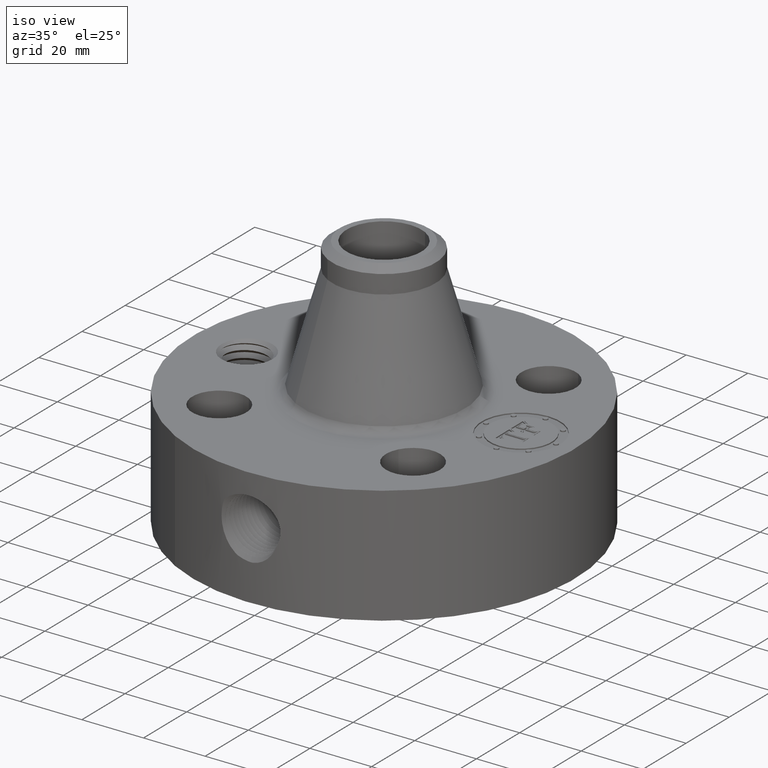
[diagram: clean part render]
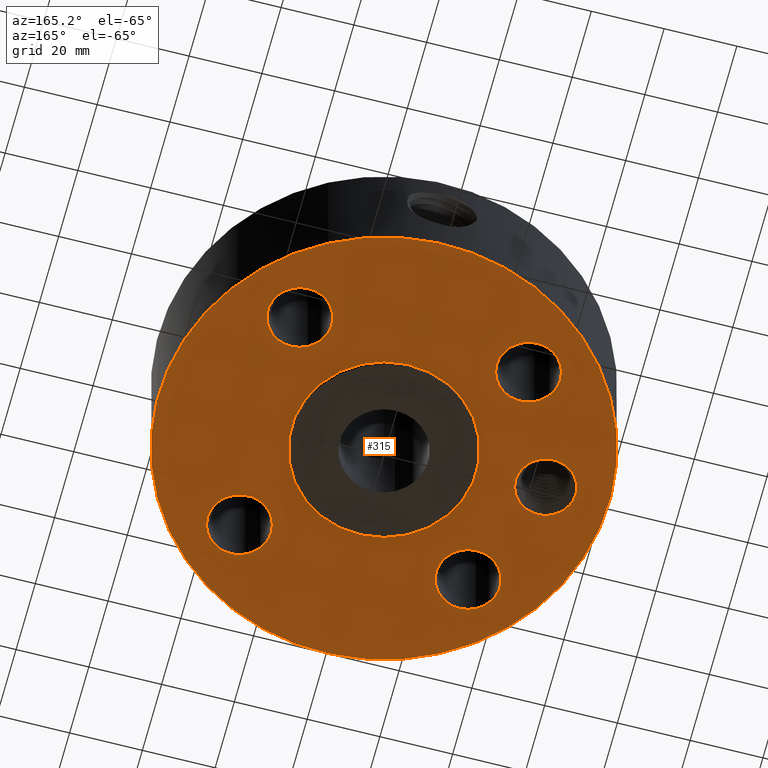
[diagram: tour spotlight — one face highlighted and labeled with its STEP entity id]
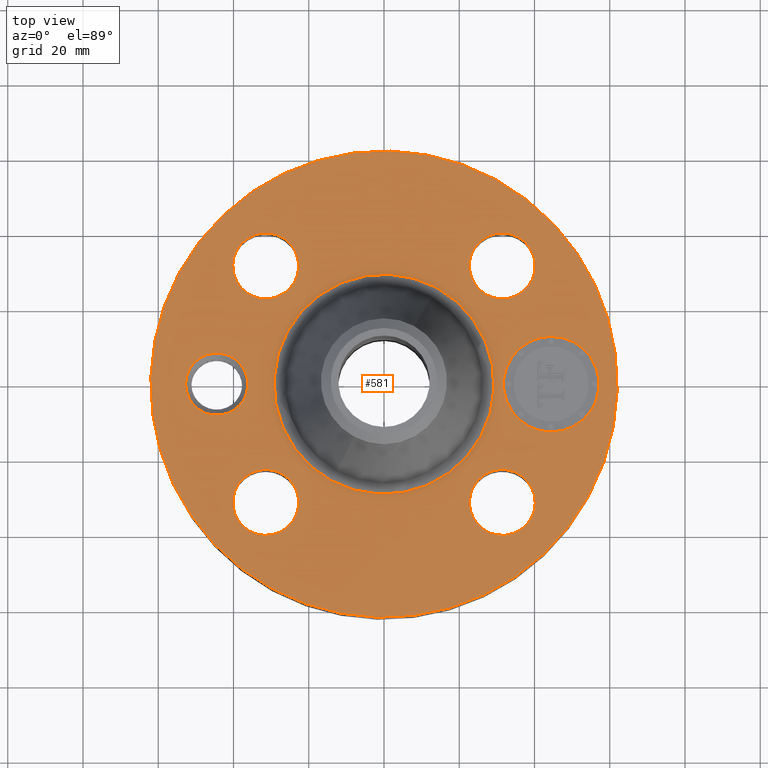
[diagram: tour spotlight — one face highlighted and labeled with its STEP entity id]
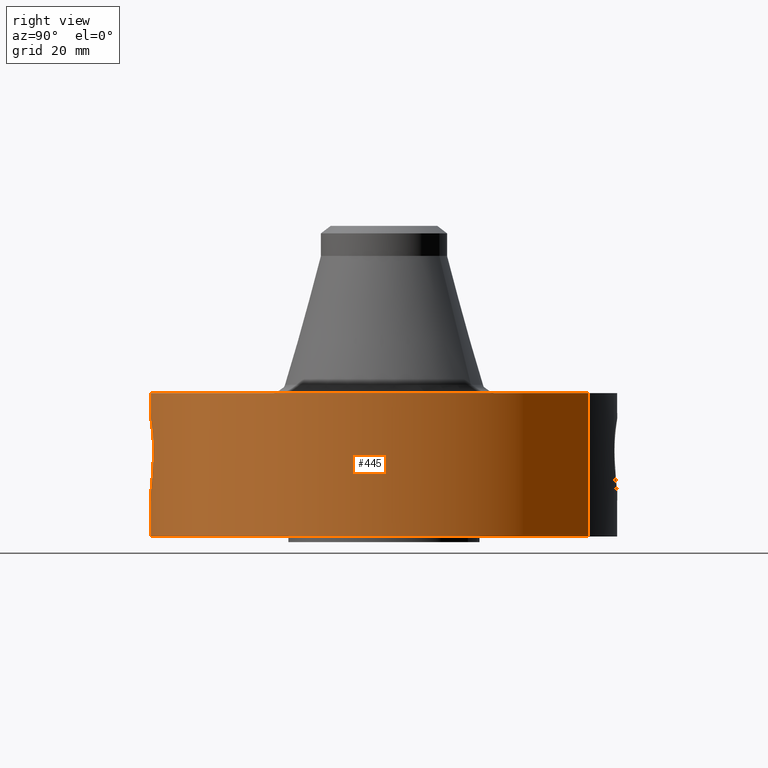
[diagram: tour spotlight — one face highlighted and labeled with its STEP entity id]
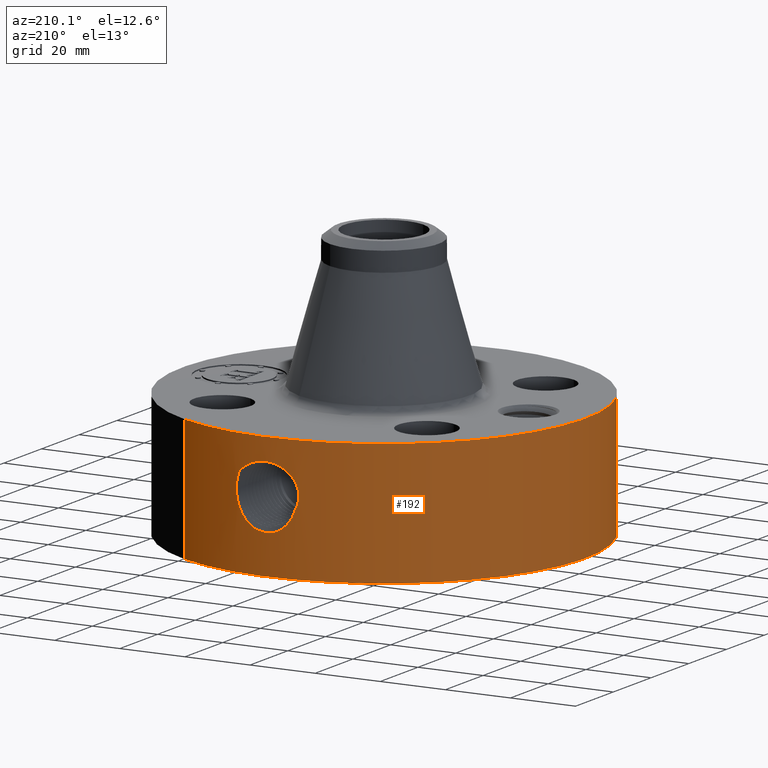
[diagram: tour spotlight — one face highlighted and labeled with its STEP entity id]
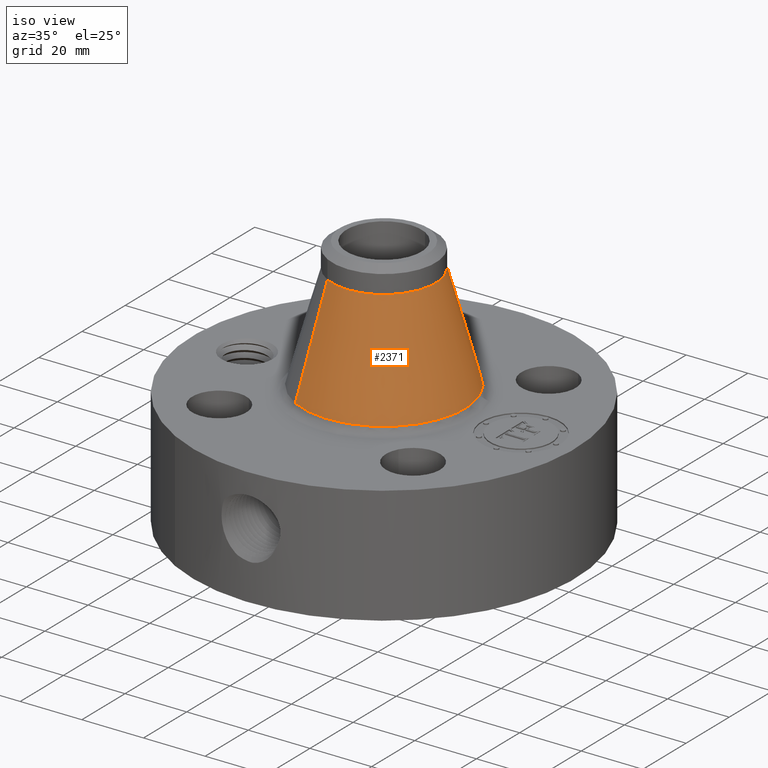
[diagram: tour spotlight — one face highlighted and labeled with its STEP entity id]
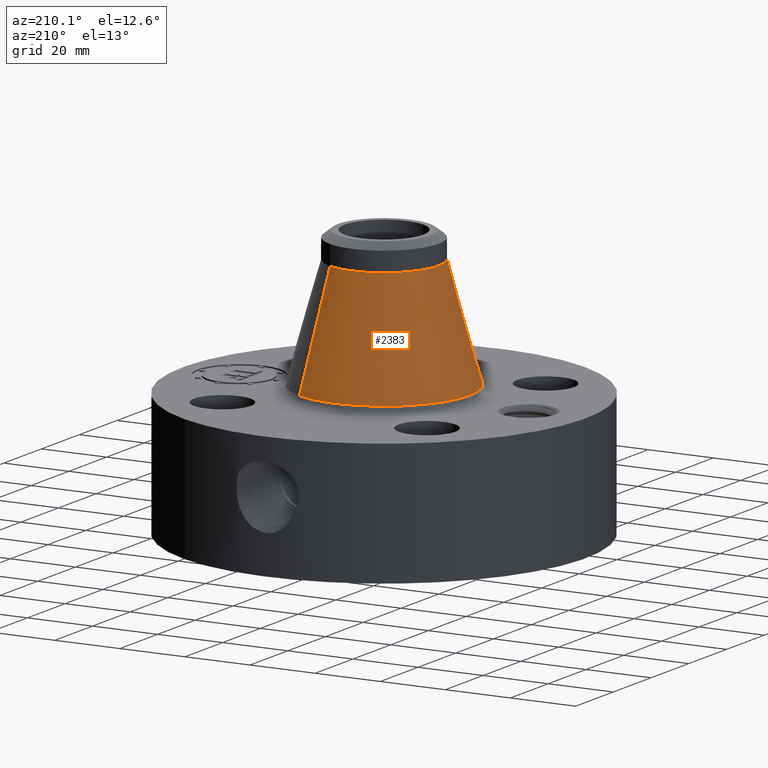
[diagram: tour spotlight — one face highlighted and labeled with its STEP entity id]
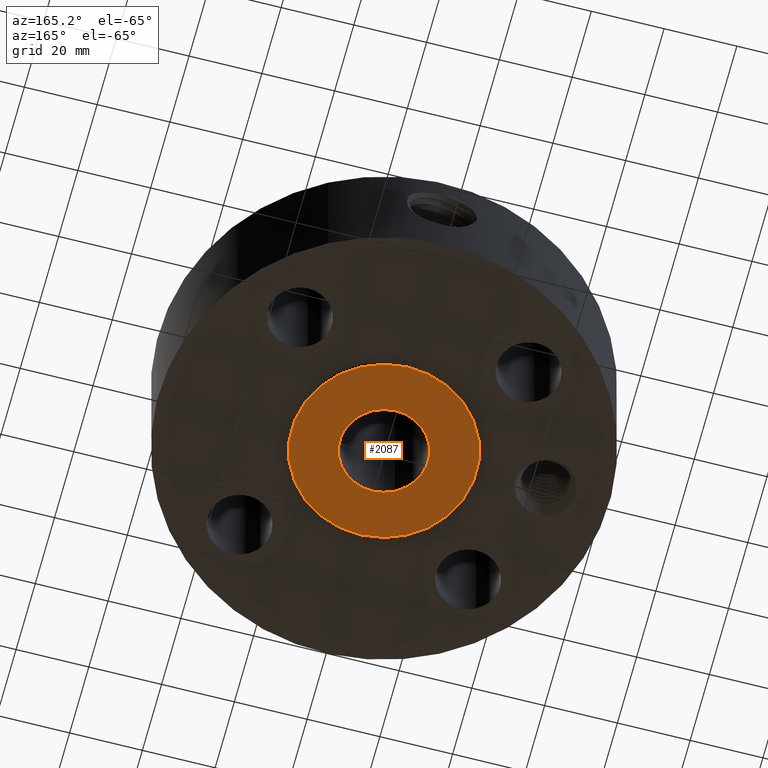
[diagram: tour spotlight — one face highlighted and labeled with its STEP entity id]
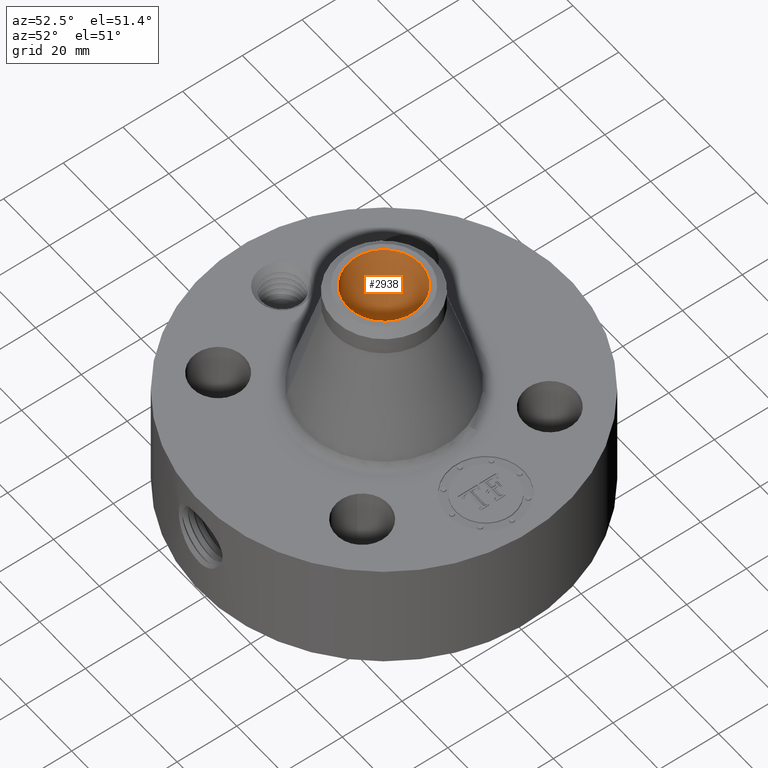
[diagram: tour spotlight — one face highlighted and labeled with its STEP entity id]
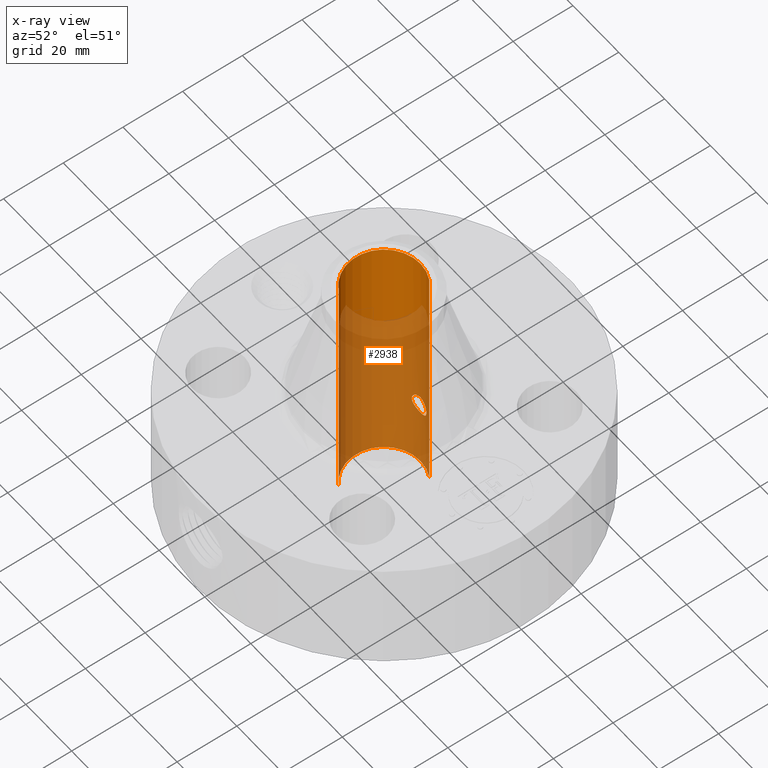
[diagram: x-ray of the same camera — body ghosted, this tour face saturated]
A machine part: a face-by-face anatomy tour. The part has 764 B-rep faces; the first image is the clean iso view, then the 8 largest visible faces are spotlighted one at a time (largest first), each with its STEP entity span.

Face 1 — auxiliary view, entity #315. In plain terms, the highlighted planar face has unit normal (0, 0, -1).
Definition (entity closure, byte-faithful):
#42=AXIS2_PLACEMENT_3D('Circle Axis2P3D',#40,#41,$) ;
#196=AXIS2_PLACEMENT_3D('Plane Axis2P3D',#193,#194,#195) ;
#200=AXIS2_PLACEMENT_3D('Circle Axis2P3D',#198,#199,$) ;
#209=AXIS2_PLACEMENT_3D('Circle Axis2P3D',#207,#208,$) ;
#218=AXIS2_PLACEMENT_3D('Circle Axis2P3D',#216,#217,$) ;
#227=AXIS2_PLACEMENT_3D('Circle Axis2P3D',#225,#226,$) ;
#236=AXIS2_PLACEMENT_3D('Circle Axis2P3D',#234,#235,$) ;
#245=AXIS2_PLACEMENT_3D('Circle Axis2P3D',#243,#244,$) ;
#254=AXIS2_PLACEMENT_3D('Circle Axis2P3D',#252,#253,$) ;
#263=AXIS2_PLACEMENT_3D('Circle Axis2P3D',#261,#262,$) ;
#272=AXIS2_PLACEMENT_3D('Circle Axis2P3D',#270,#271,$) ;
#281=AXIS2_PLACEMENT_3D('Circle Axis2P3D',#279,#280,$) ;
#290=AXIS2_PLACEMENT_3D('Circle Axis2P3D',#288,#289,$) ;
#299=AXIS2_PLACEMENT_3D('Circle Axis2P3D',#297,#298,$) ;
#308=AXIS2_PLACEMENT_3D('Circle Axis2P3D',#306,#307,$) ;
#40=CARTESIAN_POINT('Axis2P3D Location',(0.,0.,0.0600000000002)) ;
#44=CARTESIAN_POINT('Vertex',(-1.1697983142,-2.14130145102,0.0600000000002)) ;
#46=CARTESIAN_POINT('Vertex',(1.1697983142,2.14130145102,0.0600000000002)) ;
#193=CARTESIAN_POINT('Axis2P3D Location',(0.,1.,0.0600000000002)) ;
#198=CARTESIAN_POINT('Axis2P3D Location',(0.,0.,0.0600000000002)) ;
#207=CARTESIAN_POINT('Axis2P3D Location',(-1.75000000001,4.19611851827E-016,0.0600000000002)) ;
#211=CARTESIAN_POINT('Vertex',(-1.46423717829,-0.156112941009,0.0600000000002)) ;
#213=CARTESIAN_POINT('Vertex',(-2.03576282172,0.156112941009,0.0600000000002)) ;
#216=CARTESIAN_POINT('Axis2P3D Location',(-1.75000000001,4.19611851827E-016,0.0600000000002)) ;
#225=CARTESIAN_POINT('Axis2P3D Location',(1.23743686708,-1.23743686708,0.0600000000002)) ;
#229=CARTESIAN_POINT('Vertex',(1.54020285093,-1.4028386779,0.0600000000002)) ;
#231=CARTESIAN_POINT('Vertex',(0.934670883228,-1.07203505626,0.0600000000002)) ;
#234=CARTESIAN_POINT('Axis2P3D Location',(1.23743686708,-1.23743686708,0.0600000000002)) ;
#243=CARTESIAN_POINT('Axis2P3D Location',(0.,0.,0.0600000000002)) ;
#247=CARTESIAN_POINT('Vertex',(0.479425538606,0.877582561894,0.0600000000002)) ;
#249=CARTESIAN_POINT('Vertex',(-0.479425538606,-0.877582561894,0.0600000000002)) ;
#252=CARTESIAN_POINT('Axis2P3D Location',(0.,0.,0.0600000000002)) ;
#261=CARTESIAN_POINT('Axis2P3D Location',(-1.23743686708,-1.23743686708,0.0600000000002)) ;
#265=CARTESIAN_POINT('Vertex',(-1.07203505626,-0.934670883228,0.0600000000002)) ;
#267=CARTESIAN_POINT('Vertex',(-1.4028386779,-1.54020285093,0.0600000000002)) ;
#270=CARTESIAN_POINT('Axis2P3D Location',(-1.23743686708,-1.23743686708,0.0600000000002)) ;
#279=CARTESIAN_POINT('Axis2P3D Location',(-1.23743686708,1.23743686708,0.0600000000002)) ;
#283=CARTESIAN_POINT('Vertex',(-0.934670883228,1.07203505626,0.0600000000002)) ;
#285=CARTESIAN_POINT('Vertex',(-1.54020285093,1.4028386779,0.0600000000002)) ;
#288=CARTESIAN_POINT('Axis2P3D Location',(-1.23743686708,1.23743686708,0.0600000000002)) ;
#297=CARTESIAN_POINT('Axis2P3D Location',(1.23743686708,1.23743686708,0.0600000000002)) ;
#301=CARTESIAN_POINT('Vertex',(1.07203505626,0.934670883228,0.0600000000002)) ;
#303=CARTESIAN_POINT('Vertex',(1.4028386779,1.54020285093,0.0600000000002)) ;
#306=CARTESIAN_POINT('Axis2P3D Location',(1.23743686708,1.23743686708,0.0600000000002)) ;
#41=DIRECTION('Axis2P3D Direction',(0.,0.,-0.0393700787402)) ;
#194=DIRECTION('Axis2P3D Direction',(0.,0.,-0.0393700787402)) ;
#195=DIRECTION('Axis2P3D XDirection',(0.0393700787402,0.,0.)) ;
#199=DIRECTION('Axis2P3D Direction',(0.,0.,-0.0393700787402)) ;
#208=DIRECTION('Axis2P3D Direction',(0.,0.,-0.0393700787402)) ;
#217=DIRECTION('Axis2P3D Direction',(0.,0.,-0.0393700787402)) ;
#226=DIRECTION('Axis2P3D Direction',(0.,0.,-0.0393700787402)) ;
#235=DIRECTION('Axis2P3D Direction',(0.,0.,-0.0393700787402)) ;
#244=DIRECTION('Axis2P3D Direction',(0.,0.,-0.0393700787402)) ;
#253=DIRECTION('Axis2P3D Direction',(0.,0.,-0.0393700787402)) ;
#262=DIRECTION('Axis2P3D Direction',(0.,0.,-0.0393700787402)) ;
#271=DIRECTION('Axis2P3D Direction',(0.,0.,-0.0393700787402)) ;
#280=DIRECTION('Axis2P3D Direction',(0.,0.,-0.0393700787402)) ;
#289=DIRECTION('Axis2P3D Direction',(0.,0.,-0.0393700787402)) ;
#298=DIRECTION('Axis2P3D Direction',(0.,0.,-0.0393700787402)) ;
#307=DIRECTION('Axis2P3D Direction',(0.,0.,-0.0393700787402)) ;
#204=ORIENTED_EDGE('',*,*,#48,.T.) ;
#205=ORIENTED_EDGE('',*,*,#202,.T.) ;
#222=ORIENTED_EDGE('',*,*,#215,.F.) ;
#223=ORIENTED_EDGE('',*,*,#220,.F.) ;
#240=ORIENTED_EDGE('',*,*,#233,.F.) ;
#241=ORIENTED_EDGE('',*,*,#238,.F.) ;
#258=ORIENTED_EDGE('',*,*,#251,.F.) ;
#259=ORIENTED_EDGE('',*,*,#256,.F.) ;
#276=ORIENTED_EDGE('',*,*,#269,.F.) ;
#277=ORIENTED_EDGE('',*,*,#274,.F.) ;
#294=ORIENTED_EDGE('',*,*,#287,.F.) ;
#295=ORIENTED_EDGE('',*,*,#292,.F.) ;
#312=ORIENTED_EDGE('',*,*,#305,.F.) ;
#313=ORIENTED_EDGE('',*,*,#310,.F.) ;
#224=FACE_BOUND('',#221,.T.) ;
#242=FACE_BOUND('',#239,.T.) ;
#260=FACE_BOUND('',#257,.T.) ;
#278=FACE_BOUND('',#275,.T.) ;
#296=FACE_BOUND('',#293,.T.) ;
#314=FACE_BOUND('',#311,.T.) ;
#315=ADVANCED_FACE('PartBody',(#206,#224,#242,#260,#278,#296,#314),#197,.T.) ;
#43=CIRCLE('generated circle',#42,2.44000000001) ;
#201=CIRCLE('generated circle',#200,2.44000000001) ;
#210=CIRCLE('generated circle',#209,0.325625000001) ;
#219=CIRCLE('generated circle',#218,0.325625000001) ;
#228=CIRCLE('generated circle',#227,0.345000000001) ;
#237=CIRCLE('generated circle',#236,0.345000000001) ;
#246=CIRCLE('generated circle',#245,1.) ;
#255=CIRCLE('generated circle',#254,1.) ;
#264=CIRCLE('generated circle',#263,0.345000000001) ;
#273=CIRCLE('generated circle',#272,0.345000000001) ;
#282=CIRCLE('generated circle',#281,0.345000000001) ;
#291=CIRCLE('generated circle',#290,0.345000000001) ;
#300=CIRCLE('generated circle',#299,0.345000000001) ;
#309=CIRCLE('generated circle',#308,0.345000000001) ;
#48=EDGE_CURVE('',#45,#47,#43,.T.) ;
#202=EDGE_CURVE('',#47,#45,#201,.T.) ;
#215=EDGE_CURVE('',#212,#214,#210,.T.) ;
#220=EDGE_CURVE('',#214,#212,#219,.T.) ;
#233=EDGE_CURVE('',#230,#232,#228,.T.) ;
#238=EDGE_CURVE('',#232,#230,#237,.T.) ;
#251=EDGE_CURVE('',#248,#250,#246,.T.) ;
#256=EDGE_CURVE('',#250,#248,#255,.T.) ;
#269=EDGE_CURVE('',#266,#268,#264,.T.) ;
#274=EDGE_CURVE('',#268,#266,#273,.T.) ;
#287=EDGE_CURVE('',#284,#286,#282,.T.) ;
#292=EDGE_CURVE('',#286,#284,#291,.T.) ;
#305=EDGE_CURVE('',#302,#304,#300,.T.) ;
#310=EDGE_CURVE('',#304,#302,#309,.T.) ;
#203=EDGE_LOOP('',(#204,#205)) ;
#221=EDGE_LOOP('',(#222,#223)) ;
#239=EDGE_LOOP('',(#240,#241)) ;
#257=EDGE_LOOP('',(#258,#259)) ;
#275=EDGE_LOOP('',(#276,#277)) ;
#293=EDGE_LOOP('',(#294,#295)) ;
#311=EDGE_LOOP('',(#312,#313)) ;
#206=FACE_OUTER_BOUND('',#203,.T.) ;
#197=PLANE('',#196) ;
#45=VERTEX_POINT('',#44) ;
#47=VERTEX_POINT('',#46) ;
#212=VERTEX_POINT('',#211) ;
#214=VERTEX_POINT('',#213) ;
#230=VERTEX_POINT('',#229) ;
#232=VERTEX_POINT('',#231) ;
#248=VERTEX_POINT('',#247) ;
#250=VERTEX_POINT('',#249) ;
#266=VERTEX_POINT('',#265) ;
#268=VERTEX_POINT('',#267) ;
#284=VERTEX_POINT('',#283) ;
#286=VERTEX_POINT('',#285) ;
#302=VERTEX_POINT('',#301) ;
#304=VERTEX_POINT('',#303) ;

Face 2 — top view, entity #581. In plain terms, the highlighted planar face has unit normal (0, 0, -1).
Definition (entity closure, byte-faithful):
#58=AXIS2_PLACEMENT_3D('Circle Axis2P3D',#56,#57,$) ;
#318=AXIS2_PLACEMENT_3D('Circle Axis2P3D',#316,#317,$) ;
#449=AXIS2_PLACEMENT_3D('Plane Axis2P3D',#446,#447,#448) ;
#457=AXIS2_PLACEMENT_3D('Circle Axis2P3D',#455,#456,$) ;
#466=AXIS2_PLACEMENT_3D('Circle Axis2P3D',#464,#465,$) ;
#475=AXIS2_PLACEMENT_3D('Circle Axis2P3D',#473,#474,$) ;
#484=AXIS2_PLACEMENT_3D('Circle Axis2P3D',#482,#483,$) ;
#493=AXIS2_PLACEMENT_3D('Circle Axis2P3D',#491,#492,$) ;
#502=AXIS2_PLACEMENT_3D('Circle Axis2P3D',#500,#501,$) ;
#511=AXIS2_PLACEMENT_3D('Circle Axis2P3D',#509,#510,$) ;
#520=AXIS2_PLACEMENT_3D('Circle Axis2P3D',#518,#519,$) ;
#529=AXIS2_PLACEMENT_3D('Circle Axis2P3D',#527,#528,$) ;
#538=AXIS2_PLACEMENT_3D('Circle Axis2P3D',#536,#537,$) ;
#547=AXIS2_PLACEMENT_3D('Circle Axis2P3D',#545,#546,$) ;
#556=AXIS2_PLACEMENT_3D('Circle Axis2P3D',#554,#555,$) ;
#565=AXIS2_PLACEMENT_3D('Circle Axis2P3D',#563,#564,$) ;
#574=AXIS2_PLACEMENT_3D('Circle Axis2P3D',#572,#573,$) ;
#53=CARTESIAN_POINT('Vertex',(-1.1697983142,-2.14130145102,1.56000000001)) ;
#56=CARTESIAN_POINT('Axis2P3D Location',(0.,0.,1.56000000001)) ;
#60=CARTESIAN_POINT('Vertex',(1.1697983142,2.14130145102,1.56000000001)) ;
#316=CARTESIAN_POINT('Axis2P3D Location',(0.,0.,1.56000000001)) ;
#446=CARTESIAN_POINT('Axis2P3D Location',(0.,2.44000000001,1.56000000001)) ;
#455=CARTESIAN_POINT('Axis2P3D Location',(-1.75000000001,2.79741234551E-016,1.56000000001)) ;
#459=CARTESIAN_POINT('Vertex',(-2.03576282172,0.156112941009,1.56000000001)) ;
#461=CARTESIAN_POINT('Vertex',(-1.46423717829,-0.156112941009,1.56000000001)) ;
#464=CARTESIAN_POINT('Axis2P3D Location',(-1.75000000001,2.79741234551E-016,1.56000000001)) ;
#473=CARTESIAN_POINT('Axis2P3D Location',(1.23743686708,-1.23743686708,1.56000000001)) ;
#477=CARTESIAN_POINT('Vertex',(0.934670883228,-1.07203505626,1.56000000001)) ;
#479=CARTESIAN_POINT('Vertex',(1.54020285093,-1.4028386779,1.56000000001)) ;
#482=CARTESIAN_POINT('Axis2P3D Location',(1.23743686708,-1.23743686708,1.56000000001)) ;
#491=CARTESIAN_POINT('Axis2P3D Location',(0.,0.,1.56000000001)) ;
#495=CARTESIAN_POINT('Vertex',(-0.551878272916,-1.01020640245,1.56000000001)) ;
#497=CARTESIAN_POINT('Vertex',(0.551878272916,1.01020640245,1.56000000001)) ;
#500=CARTESIAN_POINT('Axis2P3D Location',(0.,0.,1.56000000001)) ;
#509=CARTESIAN_POINT('Axis2P3D Location',(-1.23743686708,-1.23743686708,1.56000000001)) ;
#513=CARTESIAN_POINT('Vertex',(-1.4028386779,-1.54020285093,1.56000000001)) ;
#515=CARTESIAN_POINT('Vertex',(-1.07203505626,-0.934670883228,1.56000000001)) ;
#518=CARTESIAN_POINT('Axis2P3D Location',(-1.23743686708,-1.23743686708,1.56000000001)) ;
#527=CARTESIAN_POINT('Axis2P3D Location',(-1.23743686708,1.23743686708,1.56000000001)) ;
#531=CARTESIAN_POINT('Vertex',(-1.54020285093,1.4028386779,1.56000000001)) ;
#533=CARTESIAN_POINT('Vertex',(-0.934670883228,1.07203505626,1.56000000001)) ;
#536=CARTESIAN_POINT('Axis2P3D Location',(-1.23743686708,1.23743686708,1.56000000001)) ;
#545=CARTESIAN_POINT('Axis2P3D Location',(1.23743686708,1.23743686708,1.56000000001)) ;
#549=CARTESIAN_POINT('Vertex',(1.4028386779,1.54020285093,1.56000000001)) ;
#551=CARTESIAN_POINT('Vertex',(1.07203505626,0.934670883228,1.56000000001)) ;
#554=CARTESIAN_POINT('Axis2P3D Location',(1.23743686708,1.23743686708,1.56000000001)) ;
#563=CARTESIAN_POINT('Axis2P3D Location',(1.75000000001,-4.75560098737E-015,1.56000000001)) ;
#567=CARTESIAN_POINT('Vertex',(1.75000000001,0.499999995002,1.56000000001)) ;
#569=CARTESIAN_POINT('Vertex',(1.75000000001,-0.499999995002,1.56000000001)) ;
#572=CARTESIAN_POINT('Axis2P3D Location',(1.75000000001,-4.19611851827E-015,1.56000000001)) ;
#57=DIRECTION('Axis2P3D Direction',(0.,0.,-0.0393700787402)) ;
#317=DIRECTION('Axis2P3D Direction',(0.,0.,-0.0393700787402)) ;
#447=DIRECTION('Axis2P3D Direction',(0.,0.,-0.0393700787402)) ;
#448=DIRECTION('Axis2P3D XDirection',(0.0393700787402,0.,0.)) ;
#456=DIRECTION('Axis2P3D Direction',(0.,0.,-0.0393700787402)) ;
#465=DIRECTION('Axis2P3D Direction',(0.,0.,-0.0393700787402)) ;
#474=DIRECTION('Axis2P3D Direction',(0.,0.,-0.0393700787402)) ;
#483=DIRECTION('Axis2P3D Direction',(0.,0.,-0.0393700787402)) ;
#492=DIRECTION('Axis2P3D Direction',(0.,0.,-0.0393700787402)) ;
#501=DIRECTION('Axis2P3D Direction',(0.,0.,-0.0393700787402)) ;
#510=DIRECTION('Axis2P3D Direction',(0.,0.,-0.0393700787402)) ;
#519=DIRECTION('Axis2P3D Direction',(0.,0.,-0.0393700787402)) ;
#528=DIRECTION('Axis2P3D Direction',(0.,0.,-0.0393700787402)) ;
#537=DIRECTION('Axis2P3D Direction',(0.,0.,-0.0393700787402)) ;
#546=DIRECTION('Axis2P3D Direction',(0.,0.,-0.0393700787402)) ;
#555=DIRECTION('Axis2P3D Direction',(0.,0.,-0.0393700787402)) ;
#564=DIRECTION('Axis2P3D Direction',(0.,0.,-0.0393700787402)) ;
#573=DIRECTION('Axis2P3D Direction',(0.,0.,-0.0393700787402)) ;
#452=ORIENTED_EDGE('',*,*,#320,.F.) ;
#453=ORIENTED_EDGE('',*,*,#62,.F.) ;
#470=ORIENTED_EDGE('',*,*,#463,.T.) ;
#471=ORIENTED_EDGE('',*,*,#468,.T.) ;
#488=ORIENTED_EDGE('',*,*,#481,.T.) ;
#489=ORIENTED_EDGE('',*,*,#486,.T.) ;
#506=ORIENTED_EDGE('',*,*,#499,.T.) ;
#507=ORIENTED_EDGE('',*,*,#504,.T.) ;
#524=ORIENTED_EDGE('',*,*,#517,.T.) ;
#525=ORIENTED_EDGE('',*,*,#522,.T.) ;
#542=ORIENTED_EDGE('',*,*,#535,.T.) ;
#543=ORIENTED_EDGE('',*,*,#540,.T.) ;
#560=ORIENTED_EDGE('',*,*,#553,.T.) ;
#561=ORIENTED_EDGE('',*,*,#558,.T.) ;
#578=ORIENTED_EDGE('',*,*,#571,.T.) ;
#579=ORIENTED_EDGE('',*,*,#576,.T.) ;
#472=FACE_BOUND('',#469,.T.) ;
#490=FACE_BOUND('',#487,.T.) ;
#508=FACE_BOUND('',#505,.T.) ;
#526=FACE_BOUND('',#523,.T.) ;
#544=FACE_BOUND('',#541,.T.) ;
#562=FACE_BOUND('',#559,.T.) ;
#580=FACE_BOUND('',#577,.T.) ;
#581=ADVANCED_FACE('PartBody',(#454,#472,#490,#508,#526,#544,#562,#580),#450,.F.) ;
#59=CIRCLE('generated circle',#58,2.44000000001) ;
#319=CIRCLE('generated circle',#318,2.44000000001) ;
#458=CIRCLE('generated circle',#457,0.325625000001) ;
#467=CIRCLE('generated circle',#466,0.325625000001) ;
#476=CIRCLE('generated circle',#475,0.345000000001) ;
#485=CIRCLE('generated circle',#484,0.345000000001) ;
#494=CIRCLE('generated circle',#493,1.15112406094) ;
#503=CIRCLE('generated circle',#502,1.15112406094) ;
#512=CIRCLE('generated circle',#511,0.345000000001) ;
#521=CIRCLE('generated circle',#520,0.345000000001) ;
#530=CIRCLE('generated circle',#529,0.345000000001) ;
#539=CIRCLE('generated circle',#538,0.345000000001) ;
#548=CIRCLE('generated circle',#547,0.345000000001) ;
#557=CIRCLE('generated circle',#556,0.345000000001) ;
#566=CIRCLE('generated circle',#565,0.499999995002) ;
#575=CIRCLE('generated circle',#574,0.499999995002) ;
#62=EDGE_CURVE('',#54,#61,#59,.T.) ;
#320=EDGE_CURVE('',#61,#54,#319,.T.) ;
#463=EDGE_CURVE('',#460,#462,#458,.T.) ;
#468=EDGE_CURVE('',#462,#460,#467,.T.) ;
#481=EDGE_CURVE('',#478,#480,#476,.T.) ;
#486=EDGE_CURVE('',#480,#478,#485,.T.) ;
#499=EDGE_CURVE('',#496,#498,#494,.T.) ;
#504=EDGE_CURVE('',#498,#496,#503,.T.) ;
#517=EDGE_CURVE('',#514,#516,#512,.T.) ;
#522=EDGE_CURVE('',#516,#514,#521,.T.) ;
#535=EDGE_CURVE('',#532,#534,#530,.T.) ;
#540=EDGE_CURVE('',#534,#532,#539,.T.) ;
#553=EDGE_CURVE('',#550,#552,#548,.T.) ;
#558=EDGE_CURVE('',#552,#550,#557,.T.) ;
#571=EDGE_CURVE('',#568,#570,#566,.T.) ;
#576=EDGE_CURVE('',#570,#568,#575,.T.) ;
#451=EDGE_LOOP('',(#452,#453)) ;
#469=EDGE_LOOP('',(#470,#471)) ;
#487=EDGE_LOOP('',(#488,#489)) ;
#505=EDGE_LOOP('',(#506,#507)) ;
#523=EDGE_LOOP('',(#524,#525)) ;
#541=EDGE_LOOP('',(#542,#543)) ;
#559=EDGE_LOOP('',(#560,#561)) ;
#577=EDGE_LOOP('',(#578,#579)) ;
#454=FACE_OUTER_BOUND('',#451,.T.) ;
#450=PLANE('',#449) ;
#54=VERTEX_POINT('',#53) ;
#61=VERTEX_POINT('',#60) ;
#460=VERTEX_POINT('',#459) ;
#462=VERTEX_POINT('',#461) ;
#478=VERTEX_POINT('',#477) ;
#480=VERTEX_POINT('',#479) ;
#496=VERTEX_POINT('',#495) ;
#498=VERTEX_POINT('',#497) ;
#514=VERTEX_POINT('',#513) ;
#516=VERTEX_POINT('',#515) ;
#532=VERTEX_POINT('',#531) ;
#534=VERTEX_POINT('',#533) ;
#550=VERTEX_POINT('',#549) ;
#552=VERTEX_POINT('',#551) ;
#568=VERTEX_POINT('',#567) ;
#570=VERTEX_POINT('',#569) ;

Face 3 — right view, entity #445. In plain terms, the highlighted cylindrical surface (partial cylindrical patch) has radius 61.976 mm, axis along (0, 0, -1).
Definition (entity closure, byte-faithful):
#38=AXIS2_PLACEMENT_3D('Cylinder Axis2P3D',#35,#36,#37) ;
#200=AXIS2_PLACEMENT_3D('Circle Axis2P3D',#198,#199,$) ;
#318=AXIS2_PLACEMENT_3D('Circle Axis2P3D',#316,#317,$) ;
#35=CARTESIAN_POINT('Axis2P3D Location',(0.,0.,1.65500000001)) ;
#44=CARTESIAN_POINT('Vertex',(-1.1697983142,-2.14130145102,0.0600000000002)) ;
#46=CARTESIAN_POINT('Vertex',(1.1697983142,2.14130145102,0.0600000000002)) ;
#49=CARTESIAN_POINT('Line Origine',(-1.1697983142,-2.14130145102,0.810000000003)) ;
#53=CARTESIAN_POINT('Vertex',(-1.1697983142,-2.14130145102,1.56000000001)) ;
#60=CARTESIAN_POINT('Vertex',(1.1697983142,2.14130145102,1.56000000001)) ;
#63=CARTESIAN_POINT('Line Origine',(1.1697983142,2.14130145102,0.810000000003)) ;
#198=CARTESIAN_POINT('Axis2P3D Location',(0.,0.,0.0600000000002)) ;
#316=CARTESIAN_POINT('Axis2P3D Location',(0.,0.,1.56000000001)) ;
#328=CARTESIAN_POINT('Control Point',(0.16192159428,-2.4346214074,1.25474246112)) ;
#329=CARTESIAN_POINT('Control Point',(0.12476167853,-2.43709283592,1.27394650423)) ;
#330=CARTESIAN_POINT('Control Point',(0.0845285010645,-2.43901250296,1.28730102498)) ;
#331=CARTESIAN_POINT('Control Point',(0.042626626407,-2.43998754964,1.2940330846)) ;
#332=CARTESIAN_POINT('Control Point',(0.000718733829063,-2.43999989415,1.29411849633)) ;
#333=CARTESIAN_POINT('Vertex',(0.161921600554,-2.43462140699,1.25474245804)) ;
#335=CARTESIAN_POINT('Vertex',(0.000718469330927,-2.43999989423,1.29411850216)) ;
#339=CARTESIAN_POINT('Control Point',(0.16989837306,-2.43407776024,1.25094225976)) ;
#340=CARTESIAN_POINT('Control Point',(0.167252431002,-2.43426244672,1.25223769882)) ;
#341=CARTESIAN_POINT('Control Point',(0.164593290178,-2.43444371847,1.25350443879)) ;
#342=CARTESIAN_POINT('Control Point',(0.161921599901,-2.43462140702,1.25474245516)) ;
#343=CARTESIAN_POINT('Vertex',(0.16989837306,-2.43407776024,1.25094225976)) ;
#347=CARTESIAN_POINT('Control Point',(0.328116375832,-2.41783780348,0.808661705007)) ;
#348=CARTESIAN_POINT('Control Point',(0.351266820572,-2.41469613699,0.847920653397)) ;
#349=CARTESIAN_POINT('Control Point',(0.367537068289,-2.41220597774,0.891967145638)) ;
#350=CARTESIAN_POINT('Control Point',(0.374754426076,-2.41102143693,0.939647099964)) ;
#351=CARTESIAN_POINT('Control Point',(0.370017243737,-2.41184047452,1.00871566147)) ;
#352=CARTESIAN_POINT('Control Point',(0.346589033702,-2.41527741307,1.0725719509)) ;
#353=CARTESIAN_POINT('Control Point',(0.337668385423,-2.41655315054,1.09162203602)) ;
#354=CARTESIAN_POINT('Control Point',(0.30776430118,-2.42066054004,1.1438749814)) ;
#355=CARTESIAN_POINT('Control Point',(0.266998882778,-2.42558826776,1.18820864016)) ;
#356=CARTESIAN_POINT('Control Point',(0.236947873255,-2.428785004,1.21314596385)) ;
#357=CARTESIAN_POINT('Control Point',(0.204355865072,-2.4316726309,1.23407205562)) ;
#358=CARTESIAN_POINT('Control Point',(0.16989837306,-2.43407776024,1.25094225976)) ;
#359=CARTESIAN_POINT('Vertex',(0.328116855676,-2.4178375316,0.808661757571)) ;
#363=CARTESIAN_POINT('Control Point',(0.320424227438,-2.41886922229,0.790797428481)) ;
#364=CARTESIAN_POINT('Control Point',(0.323151379818,-2.41850796022,0.796680963761)) ;
#365=CARTESIAN_POINT('Control Point',(0.325717354747,-2.41816336819,0.802639990312)) ;
#366=CARTESIAN_POINT('Control Point',(0.328118233165,-2.41783755143,0.808665582027)) ;
#367=CARTESIAN_POINT('Vertex',(0.320424889206,-2.41886937017,0.790798496527)) ;
#371=CARTESIAN_POINT('Control Point',(0.0268393869742,-2.43985238229,0.530897557486)) ;
#372=CARTESIAN_POINT('Control Point',(0.111814828556,-2.43891761723,0.542087008344)) ;
#373=CARTESIAN_POINT('Control Point',(0.192381472741,-2.43423204041,0.582047115166)) ;
#374=CARTESIAN_POINT('Control Point',(0.253315115574,-2.42735806073,0.644291367866)) ;
#375=CARTESIAN_POINT('Control Point',(0.296042119696,-2.42209908944,0.715167636122)) ;
#376=CARTESIAN_POINT('Control Point',(0.320424558949,-2.41886917837,0.790798572524)) ;
#377=CARTESIAN_POINT('Vertex',(0.0268393869742,-2.43985238229,0.530897557486)) ;
#381=CARTESIAN_POINT('Control Point',(0.0268393869742,-2.43985238229,0.530897557486)) ;
#382=CARTESIAN_POINT('Control Point',(0.0178847963814,-2.43995088649,0.530836461707)) ;
#383=CARTESIAN_POINT('Control Point',(0.00893312393866,-2.44000001,0.530995456445)) ;
#384=CARTESIAN_POINT('Control Point',(-2.72878353948E-006,-2.44000000001,0.531374667804)) ;
#385=CARTESIAN_POINT('Vertex',(-2.72878353754E-006,-2.44000000001,0.531374667804)) ;
#389=CARTESIAN_POINT('Control Point',(-0.165476014271,-2.43438240397,0.565083204059)) ;
#390=CARTESIAN_POINT('Control Point',(-0.112562343707,-2.43797918617,0.544988923625)) ;
#391=CARTESIAN_POINT('Control Point',(-0.0565393148661,-2.43999993678,0.533773914324)) ;
#392=CARTESIAN_POINT('Control Point',(-2.72878353731E-006,-2.44000000001,0.531374667804)) ;
#393=CARTESIAN_POINT('Vertex',(-0.165476014271,-2.43438240397,0.565083204059)) ;
#397=CARTESIAN_POINT('Control Point',(-0.165476014271,-2.43438240397,0.565083204059)) ;
#398=CARTESIAN_POINT('Control Point',(-0.175740725453,-2.43368466499,0.570334729546)) ;
#399=CARTESIAN_POINT('Control Point',(-0.185738859904,-2.43293967132,0.576087631637)) ;
#400=CARTESIAN_POINT('Control Point',(-0.195421989316,-2.43216164063,0.582285375744)) ;
#401=CARTESIAN_POINT('Vertex',(-0.195421989316,-2.43216164063,0.582285375744)) ;
#405=CARTESIAN_POINT('Control Point',(-0.195421989316,-2.43216164063,0.582285375744)) ;
#406=CARTESIAN_POINT('Control Point',(-0.247998255526,-2.42793718516,0.61593712418)) ;
#407=CARTESIAN_POINT('Control Point',(-0.293011536391,-2.42289055424,0.660601235601)) ;
#408=CARTESIAN_POINT('Control Point',(-0.328229760174,-2.41805808128,0.712425717438)) ;
#409=CARTESIAN_POINT('Control Point',(-0.382261864301,-2.41005605017,0.829676974245)) ;
#410=CARTESIAN_POINT('Control Point',(-0.395270513625,-2.40773032595,0.958065769538)) ;
#411=CARTESIAN_POINT('Control Point',(-0.390965855309,-2.40847371399,1.0256177461)) ;
#412=CARTESIAN_POINT('Control Point',(-0.375402852348,-2.41110143503,1.09202151237)) ;
#413=CARTESIAN_POINT('Control Point',(-0.348525615673,-2.4149803095,1.15442637902)) ;
#414=CARTESIAN_POINT('Vertex',(-0.348525615673,-2.4149803095,1.15442637902)) ;
#418=CARTESIAN_POINT('Control Point',(-0.348525615673,-2.4149803095,1.15442637902)) ;
#419=CARTESIAN_POINT('Control Point',(-0.294301956472,-2.42280577049,1.21385963823)) ;
#420=CARTESIAN_POINT('Control Point',(-0.226049836573,-2.43110253319,1.25810660709)) ;
#421=CARTESIAN_POINT('Control Point',(-0.151999424149,-2.43708486052,1.28575229226)) ;
#422=CARTESIAN_POINT('Control Point',(-0.0753413751147,-2.44000079858,1.29784713552)) ;
#423=CARTESIAN_POINT('Control Point',(2.58579354729E-005,-2.43999999987,1.29415298447)) ;
#424=CARTESIAN_POINT('Vertex',(2.58579354723E-005,-2.43999999987,1.29415298447)) ;
#428=CARTESIAN_POINT('Control Point',(0.000718469314804,-2.43999989423,1.29411850215)) ;
#429=CARTESIAN_POINT('Control Point',(0.000372184904074,-2.4399999962,1.29413600915)) ;
#430=CARTESIAN_POINT('Control Point',(2.58579482142E-005,-2.43999999987,1.29415298447)) ;
#36=DIRECTION('Axis2P3D Direction',(0.,0.,-0.0393700787402)) ;
#37=DIRECTION('Axis2P3D XDirection',(0.0188750212049,0.0345504945626,0.)) ;
#50=DIRECTION('Vector Direction',(0.,0.,-0.0393700787402)) ;
#64=DIRECTION('Vector Direction',(0.,0.,-0.0393700787402)) ;
#199=DIRECTION('Axis2P3D Direction',(0.,0.,-0.0393700787402)) ;
#317=DIRECTION('Axis2P3D Direction',(0.,0.,-0.0393700787402)) ;
#51=VECTOR('Line Direction',#50,0.0393700787402) ;
#65=VECTOR('Line Direction',#64,0.0393700787402) ;
#322=ORIENTED_EDGE('',*,*,#202,.F.) ;
#323=ORIENTED_EDGE('',*,*,#67,.T.) ;
#324=ORIENTED_EDGE('',*,*,#320,.T.) ;
#325=ORIENTED_EDGE('',*,*,#55,.F.) ;
#433=ORIENTED_EDGE('',*,*,#337,.F.) ;
#434=ORIENTED_EDGE('',*,*,#345,.F.) ;
#435=ORIENTED_EDGE('',*,*,#361,.F.) ;
#436=ORIENTED_EDGE('',*,*,#369,.F.) ;
#437=ORIENTED_EDGE('',*,*,#379,.F.) ;
#438=ORIENTED_EDGE('',*,*,#387,.T.) ;
#439=ORIENTED_EDGE('',*,*,#395,.F.) ;
#440=ORIENTED_EDGE('',*,*,#403,.T.) ;
#441=ORIENTED_EDGE('',*,*,#416,.T.) ;
#442=ORIENTED_EDGE('',*,*,#426,.T.) ;
#443=ORIENTED_EDGE('',*,*,#431,.F.) ;
#444=FACE_BOUND('',#432,.T.) ;
#445=ADVANCED_FACE('PartBody',(#326,#444),#39,.T.) ;
#327=B_SPLINE_CURVE_WITH_KNOTS('',4,(#328,#329,#330,#331,#332),.UNSPECIFIED.,.F.,.U.,(5,5),(0.175518252428,6.37462366398),.UNSPECIFIED.) ;
#338=B_SPLINE_CURVE_WITH_KNOTS('',3,(#339,#340,#341,#342),.UNSPECIFIED.,.F.,.U.,(4,4),(0.,0.330159466825),.UNSPECIFIED.) ;
#346=B_SPLINE_CURVE_WITH_KNOTS('',5,(#347,#348,#349,#350,#351,#352,#353,#354,#355,#356,#357,#358),.UNSPECIFIED.,.F.,.U.,(6,3,3,6),(0.,8.53095212055,12.3556762986,19.5216604215),.UNSPECIFIED.) ;
#362=B_SPLINE_CURVE_WITH_KNOTS('',3,(#363,#364,#365,#366),.UNSPECIFIED.,.F.,.U.,(4,4),(9.56540750371,10.2865901374),.UNSPECIFIED.) ;
#370=B_SPLINE_CURVE_WITH_KNOTS('',5,(#371,#372,#373,#374,#375,#376),.UNSPECIFIED.,.F.,.U.,(6,6),(0.,14.898955716),.UNSPECIFIED.) ;
#380=B_SPLINE_CURVE_WITH_KNOTS('',3,(#381,#382,#383,#384),.UNSPECIFIED.,.F.,.U.,(4,4),(0.,0.933901051561),.UNSPECIFIED.) ;
#388=B_SPLINE_CURVE_WITH_KNOTS('',3,(#389,#390,#391,#392),.UNSPECIFIED.,.F.,.U.,(4,4),(0.,5.90873404335),.UNSPECIFIED.) ;
#396=B_SPLINE_CURVE_WITH_KNOTS('',3,(#397,#398,#399,#400),.UNSPECIFIED.,.F.,.U.,(4,4),(0.,1.203436921),.UNSPECIFIED.) ;
#404=B_SPLINE_CURVE_WITH_KNOTS('',5,(#405,#406,#407,#408,#409,#410,#411,#412,#413),.UNSPECIFIED.,.F.,.U.,(6,3,6),(0.,10.8904564295,22.7389374481),.UNSPECIFIED.) ;
#417=B_SPLINE_CURVE_WITH_KNOTS('',5,(#418,#419,#420,#421,#422,#423),.UNSPECIFIED.,.F.,.U.,(6,6),(0.,14.0876899546),.UNSPECIFIED.) ;
#427=B_SPLINE_CURVE_WITH_KNOTS('',2,(#428,#429,#430),.UNSPECIFIED.,.F.,.U.,(3,3),(1.28066519652,1.30655945912),.UNSPECIFIED.) ;
#201=CIRCLE('generated circle',#200,2.44000000001) ;
#319=CIRCLE('generated circle',#318,2.44000000001) ;
#39=CYLINDRICAL_SURFACE('generated cylinder',#38,2.44000000001) ;
#55=EDGE_CURVE('',#45,#54,#52,.F.) ;
#67=EDGE_CURVE('',#47,#61,#66,.F.) ;
#202=EDGE_CURVE('',#47,#45,#201,.T.) ;
#320=EDGE_CURVE('',#61,#54,#319,.T.) ;
#337=EDGE_CURVE('',#334,#336,#327,.T.) ;
#345=EDGE_CURVE('',#344,#334,#338,.T.) ;
#361=EDGE_CURVE('',#360,#344,#346,.T.) ;
#369=EDGE_CURVE('',#368,#360,#362,.T.) ;
#379=EDGE_CURVE('',#378,#368,#370,.T.) ;
#387=EDGE_CURVE('',#378,#386,#380,.T.) ;
#395=EDGE_CURVE('',#394,#386,#388,.T.) ;
#403=EDGE_CURVE('',#394,#402,#396,.T.) ;
#416=EDGE_CURVE('',#402,#415,#404,.T.) ;
#426=EDGE_CURVE('',#415,#425,#417,.T.) ;
#431=EDGE_CURVE('',#336,#425,#427,.T.) ;
#321=EDGE_LOOP('',(#322,#323,#324,#325)) ;
#432=EDGE_LOOP('',(#433,#434,#435,#436,#437,#438,#439,#440,#441,#442,#443)) ;
#326=FACE_OUTER_BOUND('',#321,.T.) ;
#52=LINE('Line',#49,#51) ;
#66=LINE('Line',#63,#65) ;
#45=VERTEX_POINT('',#44) ;
#47=VERTEX_POINT('',#46) ;
#54=VERTEX_POINT('',#53) ;
#61=VERTEX_POINT('',#60) ;
#334=VERTEX_POINT('',#333) ;
#336=VERTEX_POINT('',#335) ;
#344=VERTEX_POINT('',#343) ;
#360=VERTEX_POINT('',#359) ;
#368=VERTEX_POINT('',#367) ;
#378=VERTEX_POINT('',#377) ;
#386=VERTEX_POINT('',#385) ;
#394=VERTEX_POINT('',#393) ;
#402=VERTEX_POINT('',#401) ;
#415=VERTEX_POINT('',#414) ;
#425=VERTEX_POINT('',#424) ;

Face 4 — auxiliary view, entity #192. In plain terms, the highlighted cylindrical surface (partial cylindrical patch) has radius 61.976 mm, axis along (0, 0, -1).
Definition (entity closure, byte-faithful):
#38=AXIS2_PLACEMENT_3D('Cylinder Axis2P3D',#35,#36,#37) ;
#42=AXIS2_PLACEMENT_3D('Circle Axis2P3D',#40,#41,$) ;
#58=AXIS2_PLACEMENT_3D('Circle Axis2P3D',#56,#57,$) ;
#35=CARTESIAN_POINT('Axis2P3D Location',(0.,0.,1.65500000001)) ;
#40=CARTESIAN_POINT('Axis2P3D Location',(0.,0.,0.0600000000002)) ;
#44=CARTESIAN_POINT('Vertex',(-1.1697983142,-2.14130145102,0.0600000000002)) ;
#46=CARTESIAN_POINT('Vertex',(1.1697983142,2.14130145102,0.0600000000002)) ;
#49=CARTESIAN_POINT('Line Origine',(-1.1697983142,-2.14130145102,0.810000000003)) ;
#53=CARTESIAN_POINT('Vertex',(-1.1697983142,-2.14130145102,1.56000000001)) ;
#56=CARTESIAN_POINT('Axis2P3D Location',(0.,0.,1.56000000001)) ;
#60=CARTESIAN_POINT('Vertex',(1.1697983142,2.14130145102,1.56000000001)) ;
#63=CARTESIAN_POINT('Line Origine',(1.1697983142,2.14130145102,0.810000000003)) ;
#75=CARTESIAN_POINT('Control Point',(-0.16192159428,2.4346214074,1.25474246112)) ;
#76=CARTESIAN_POINT('Control Point',(-0.124761678529,2.43709283592,1.27394650423)) ;
#77=CARTESIAN_POINT('Control Point',(-0.0845285010658,2.43901250296,1.28730102498)) ;
#78=CARTESIAN_POINT('Control Point',(-0.0426266264082,2.43998754964,1.2940330846)) ;
#79=CARTESIAN_POINT('Control Point',(-0.000718733828818,2.43999989415,1.29411849633)) ;
#80=CARTESIAN_POINT('Vertex',(-0.161921600554,2.43462140699,1.25474245803)) ;
#82=CARTESIAN_POINT('Vertex',(-0.000718469330936,2.43999989423,1.29411850216)) ;
#86=CARTESIAN_POINT('Control Point',(-0.16989837306,2.43407776024,1.25094225976)) ;
#87=CARTESIAN_POINT('Control Point',(-0.167252431002,2.43426244672,1.25223769882)) ;
#88=CARTESIAN_POINT('Control Point',(-0.164593290179,2.43444371847,1.25350443879)) ;
#89=CARTESIAN_POINT('Control Point',(-0.161921599901,2.43462140702,1.25474245516)) ;
#90=CARTESIAN_POINT('Vertex',(-0.16989837306,2.43407776024,1.25094225976)) ;
#94=CARTESIAN_POINT('Control Point',(-0.328116375832,2.41783780348,0.808661705007)) ;
#95=CARTESIAN_POINT('Control Point',(-0.351266820573,2.41469613699,0.847920653399)) ;
#96=CARTESIAN_POINT('Control Point',(-0.367537068289,2.41220597774,0.891967145643)) ;
#97=CARTESIAN_POINT('Control Point',(-0.374754426077,2.41102143693,0.93964709996)) ;
#98=CARTESIAN_POINT('Control Point',(-0.370017243737,2.41184047452,1.00871566147)) ;
#99=CARTESIAN_POINT('Control Point',(-0.3465890337,2.41527741307,1.0725719509)) ;
#100=CARTESIAN_POINT('Control Point',(-0.337668385426,2.41655315053,1.09162203602)) ;
#101=CARTESIAN_POINT('Control Point',(-0.307764301181,2.42066054004,1.1438749814)) ;
#102=CARTESIAN_POINT('Control Point',(-0.26699888278,2.42558826776,1.18820864016)) ;
#103=CARTESIAN_POINT('Control Point',(-0.236947873254,2.428785004,1.21314596385)) ;
#104=CARTESIAN_POINT('Control Point',(-0.204355865072,2.4316726309,1.23407205562)) ;
#105=CARTESIAN_POINT('Control Point',(-0.16989837306,2.43407776024,1.25094225976)) ;
#106=CARTESIAN_POINT('Vertex',(-0.328116855676,2.4178375316,0.808661757571)) ;
#110=CARTESIAN_POINT('Control Point',(-0.320424227439,2.41886922228,0.790797428483)) ;
#111=CARTESIAN_POINT('Control Point',(-0.32315137982,2.41850796022,0.796680963763)) ;
#112=CARTESIAN_POINT('Control Point',(-0.325717354748,2.41816336819,0.802639990313)) ;
#113=CARTESIAN_POINT('Control Point',(-0.328118233166,2.41783755143,0.808665582028)) ;
#114=CARTESIAN_POINT('Vertex',(-0.320424889206,2.41886937017,0.790798496527)) ;
#118=CARTESIAN_POINT('Control Point',(-0.0268393869742,2.43985238229,0.530897557486)) ;
#119=CARTESIAN_POINT('Control Point',(-0.111814828556,2.43891761723,0.542087008344)) ;
#120=CARTESIAN_POINT('Control Point',(-0.192381472701,2.43423204041,0.582047115152)) ;
#121=CARTESIAN_POINT('Control Point',(-0.253315115552,2.42735806074,0.644291367824)) ;
#122=CARTESIAN_POINT('Control Point',(-0.296042119696,2.42209908944,0.715167636122)) ;
#123=CARTESIAN_POINT('Control Point',(-0.320424558949,2.41886917837,0.790798572524)) ;
#124=CARTESIAN_POINT('Vertex',(-0.0268393869742,2.43985238229,0.530897557486)) ;
#128=CARTESIAN_POINT('Control Point',(-0.0268393869742,2.43985238229,0.530897557486)) ;
#129=CARTESIAN_POINT('Control Point',(-0.0178847963814,2.43995088649,0.530836461707)) ;
#130=CARTESIAN_POINT('Control Point',(-0.00893312393866,2.44000001,0.530995456445)) ;
#131=CARTESIAN_POINT('Control Point',(2.72878353701E-006,2.44000000001,0.531374667804)) ;
#132=CARTESIAN_POINT('Vertex',(2.72878353722E-006,2.44000000001,0.531374667804)) ;
#136=CARTESIAN_POINT('Control Point',(0.165476014271,2.43438240397,0.565083204059)) ;
#137=CARTESIAN_POINT('Control Point',(0.112562343707,2.43797918617,0.544988923625)) ;
#138=CARTESIAN_POINT('Control Point',(0.0565393148663,2.43999993678,0.533773914324)) ;
#139=CARTESIAN_POINT('Control Point',(2.72878354135E-006,2.44000000001,0.531374667804)) ;
#140=CARTESIAN_POINT('Vertex',(0.165476014271,2.43438240397,0.565083204059)) ;
#144=CARTESIAN_POINT('Control Point',(0.165476014271,2.43438240397,0.565083204059)) ;
#145=CARTESIAN_POINT('Control Point',(0.175740725453,2.43368466499,0.570334729546)) ;
#146=CARTESIAN_POINT('Control Point',(0.185738859904,2.43293967132,0.576087631637)) ;
#147=CARTESIAN_POINT('Control Point',(0.195421989316,2.43216164063,0.582285375744)) ;
#148=CARTESIAN_POINT('Vertex',(0.195421989316,2.43216164063,0.582285375744)) ;
#152=CARTESIAN_POINT('Control Point',(0.195421989316,2.43216164063,0.582285375744)) ;
#153=CARTESIAN_POINT('Control Point',(0.247998255529,2.42793718516,0.615937124183)) ;
#154=CARTESIAN_POINT('Control Point',(0.293011536397,2.42289055424,0.660601235607)) ;
#155=CARTESIAN_POINT('Control Point',(0.328229760173,2.41805808128,0.712425717436)) ;
#156=CARTESIAN_POINT('Control Point',(0.3822618643,2.41005605017,0.829676974242)) ;
#157=CARTESIAN_POINT('Control Point',(0.395270513623,2.40773032595,0.958065769533)) ;
#158=CARTESIAN_POINT('Control Point',(0.390965855306,2.40847371399,1.02561774611)) ;
#159=CARTESIAN_POINT('Control Point',(0.375402852346,2.41110143503,1.09202151237)) ;
#160=CARTESIAN_POINT('Control Point',(0.348525615673,2.4149803095,1.15442637902)) ;
#161=CARTESIAN_POINT('Vertex',(0.348525615673,2.4149803095,1.15442637902)) ;
#165=CARTESIAN_POINT('Control Point',(0.348525615673,2.4149803095,1.15442637902)) ;
#166=CARTESIAN_POINT('Control Point',(0.29430195647,2.42280577049,1.21385963823)) ;
#167=CARTESIAN_POINT('Control Point',(0.226049836595,2.43110253319,1.25810660708)) ;
#168=CARTESIAN_POINT('Control Point',(0.151999424155,2.43708486052,1.28575229226)) ;
#169=CARTESIAN_POINT('Control Point',(0.0753413751176,2.44000079858,1.29784713552)) ;
#170=CARTESIAN_POINT('Control Point',(-2.58579354753E-005,2.43999999987,1.29415298447)) ;
#171=CARTESIAN_POINT('Vertex',(-2.58579354725E-005,2.43999999987,1.29415298447)) ;
#175=CARTESIAN_POINT('Control Point',(-0.000718469314818,2.43999989423,1.29411850215)) ;
#176=CARTESIAN_POINT('Control Point',(-0.000372184904082,2.4399999962,1.29413600915)) ;
#177=CARTESIAN_POINT('Control Point',(-2.58579482161E-005,2.43999999987,1.29415298447)) ;
#36=DIRECTION('Axis2P3D Direction',(0.,0.,-0.0393700787402)) ;
#37=DIRECTION('Axis2P3D XDirection',(0.0188750212049,0.0345504945626,0.)) ;
#41=DIRECTION('Axis2P3D Direction',(0.,0.,-0.0393700787402)) ;
#50=DIRECTION('Vector Direction',(0.,0.,-0.0393700787402)) ;
#57=DIRECTION('Axis2P3D Direction',(0.,0.,-0.0393700787402)) ;
#64=DIRECTION('Vector Direction',(0.,0.,-0.0393700787402)) ;
#51=VECTOR('Line Direction',#50,0.0393700787402) ;
#65=VECTOR('Line Direction',#64,0.0393700787402) ;
#69=ORIENTED_EDGE('',*,*,#48,.F.) ;
#70=ORIENTED_EDGE('',*,*,#55,.T.) ;
#71=ORIENTED_EDGE('',*,*,#62,.T.) ;
#72=ORIENTED_EDGE('',*,*,#67,.F.) ;
#180=ORIENTED_EDGE('',*,*,#84,.F.) ;
#181=ORIENTED_EDGE('',*,*,#92,.F.) ;
#182=ORIENTED_EDGE('',*,*,#108,.F.) ;
#183=ORIENTED_EDGE('',*,*,#116,.F.) ;
#184=ORIENTED_EDGE('',*,*,#126,.F.) ;
#185=ORIENTED_EDGE('',*,*,#134,.T.) ;
#186=ORIENTED_EDGE('',*,*,#142,.F.) ;
#187=ORIENTED_EDGE('',*,*,#150,.T.) ;
#188=ORIENTED_EDGE('',*,*,#163,.T.) ;
#189=ORIENTED_EDGE('',*,*,#173,.T.) ;
#190=ORIENTED_EDGE('',*,*,#178,.F.) ;
#191=FACE_BOUND('',#179,.T.) ;
#192=ADVANCED_FACE('PartBody',(#73,#191),#39,.T.) ;
#74=B_SPLINE_CURVE_WITH_KNOTS('',4,(#75,#76,#77,#78,#79),.UNSPECIFIED.,.F.,.U.,(5,5),(0.175518252428,6.37462366416),.UNSPECIFIED.) ;
#85=B_SPLINE_CURVE_WITH_KNOTS('',3,(#86,#87,#88,#89),.UNSPECIFIED.,.F.,.U.,(4,4),(0.,0.330159466821),.UNSPECIFIED.) ;
#93=B_SPLINE_CURVE_WITH_KNOTS('',5,(#94,#95,#96,#97,#98,#99,#100,#101,#102,#103,#104,#105),.UNSPECIFIED.,.F.,.U.,(6,3,3,6),(0.,8.53095212092,12.3556762994,19.5216604221),.UNSPECIFIED.) ;
#109=B_SPLINE_CURVE_WITH_KNOTS('',3,(#110,#111,#112,#113),.UNSPECIFIED.,.F.,.U.,(4,4),(9.56540750234,10.2865901362),.UNSPECIFIED.) ;
#117=B_SPLINE_CURVE_WITH_KNOTS('',5,(#118,#119,#120,#121,#122,#123),.UNSPECIFIED.,.F.,.U.,(6,6),(0.,14.8989557159),.UNSPECIFIED.) ;
#127=B_SPLINE_CURVE_WITH_KNOTS('',3,(#128,#129,#130,#131),.UNSPECIFIED.,.F.,.U.,(4,4),(0.,0.933901051561),.UNSPECIFIED.) ;
#135=B_SPLINE_CURVE_WITH_KNOTS('',3,(#136,#137,#138,#139),.UNSPECIFIED.,.F.,.U.,(4,4),(0.,5.90873404336),.UNSPECIFIED.) ;
#143=B_SPLINE_CURVE_WITH_KNOTS('',3,(#144,#145,#146,#147),.UNSPECIFIED.,.F.,.U.,(4,4),(0.,1.203436921),.UNSPECIFIED.) ;
#151=B_SPLINE_CURVE_WITH_KNOTS('',5,(#152,#153,#154,#155,#156,#157,#158,#159,#160),.UNSPECIFIED.,.F.,.U.,(6,3,6),(0.,10.8904564302,22.7389374478),.UNSPECIFIED.) ;
#164=B_SPLINE_CURVE_WITH_KNOTS('',5,(#165,#166,#167,#168,#169,#170),.UNSPECIFIED.,.F.,.U.,(6,6),(0.,14.0876899552),.UNSPECIFIED.) ;
#174=B_SPLINE_CURVE_WITH_KNOTS('',2,(#175,#176,#177),.UNSPECIFIED.,.F.,.U.,(3,3),(1.28066519652,1.30655945912),.UNSPECIFIED.) ;
#43=CIRCLE('generated circle',#42,2.44000000001) ;
#59=CIRCLE('generated circle',#58,2.44000000001) ;
#39=CYLINDRICAL_SURFACE('generated cylinder',#38,2.44000000001) ;
#48=EDGE_CURVE('',#45,#47,#43,.T.) ;
#55=EDGE_CURVE('',#45,#54,#52,.F.) ;
#62=EDGE_CURVE('',#54,#61,#59,.T.) ;
#67=EDGE_CURVE('',#47,#61,#66,.F.) ;
#84=EDGE_CURVE('',#81,#83,#74,.T.) ;
#92=EDGE_CURVE('',#91,#81,#85,.T.) ;
#108=EDGE_CURVE('',#107,#91,#93,.T.) ;
#116=EDGE_CURVE('',#115,#107,#109,.T.) ;
#126=EDGE_CURVE('',#125,#115,#117,.T.) ;
#134=EDGE_CURVE('',#125,#133,#127,.T.) ;
#142=EDGE_CURVE('',#141,#133,#135,.T.) ;
#150=EDGE_CURVE('',#141,#149,#143,.T.) ;
#163=EDGE_CURVE('',#149,#162,#151,.T.) ;
#173=EDGE_CURVE('',#162,#172,#164,.T.) ;
#178=EDGE_CURVE('',#83,#172,#174,.T.) ;
#68=EDGE_LOOP('',(#69,#70,#71,#72)) ;
#179=EDGE_LOOP('',(#180,#181,#182,#183,#184,#185,#186,#187,#188,#189,#190)) ;
#73=FACE_OUTER_BOUND('',#68,.T.) ;
#52=LINE('Line',#49,#51) ;
#66=LINE('Line',#63,#65) ;
#45=VERTEX_POINT('',#44) ;
#47=VERTEX_POINT('',#46) ;
#54=VERTEX_POINT('',#53) ;
#61=VERTEX_POINT('',#60) ;
#81=VERTEX_POINT('',#80) ;
#83=VERTEX_POINT('',#82) ;
#91=VERTEX_POINT('',#90) ;
#107=VERTEX_POINT('',#106) ;
#115=VERTEX_POINT('',#114) ;
#125=VERTEX_POINT('',#124) ;
#133=VERTEX_POINT('',#132) ;
#141=VERTEX_POINT('',#140) ;
#149=VERTEX_POINT('',#148) ;
#162=VERTEX_POINT('',#161) ;
#172=VERTEX_POINT('',#171) ;

Face 5 — iso view, entity #2371. In plain terms, the highlighted conical surface has half-angle 15.576 deg.
Definition (entity closure, byte-faithful):
#1759=AXIS2_PLACEMENT_3D('Circle Axis2P3D',#1757,#1758,$) ;
#2344=AXIS2_PLACEMENT_3D('Cone Axis2P3D',#2341,#2342,#2343) ;
#2355=AXIS2_PLACEMENT_3D('Circle Axis2P3D',#2353,#2354,$) ;
#1754=CARTESIAN_POINT('Vertex',(0.496460113538,0.908764142151,1.64777740799)) ;
#1757=CARTESIAN_POINT('Axis2P3D Location',(0.,0.,1.64777740799)) ;
#1761=CARTESIAN_POINT('Vertex',(-0.496460113538,-0.908764142151,1.64777740799)) ;
#2341=CARTESIAN_POINT('Axis2P3D Location',(0.,0.,2.99492912713)) ;
#2346=CARTESIAN_POINT('Line Origine',(0.406440484509,0.743984316501,2.32135326756)) ;
#2350=CARTESIAN_POINT('Vertex',(0.31642085548,0.57920449085,2.99492912713)) ;
#2353=CARTESIAN_POINT('Axis2P3D Location',(0.,0.,2.99492912713)) ;
#2357=CARTESIAN_POINT('Vertex',(-0.31642085548,-0.57920449085,2.99492912713)) ;
#2360=CARTESIAN_POINT('Line Origine',(-0.406440484509,-0.743984316501,2.32135326756)) ;
#1758=DIRECTION('Axis2P3D Direction',(0.,0.,-0.0393700787402)) ;
#2342=DIRECTION('Axis2P3D Direction',(0.,0.,-0.0393700787402)) ;
#2343=DIRECTION('Axis2P3D XDirection',(-0.0188750212049,-0.0345504945626,0.)) ;
#2347=DIRECTION('Vector Direction',(0.00506835089648,0.00927755408533,-0.0379241599695)) ;
#2354=DIRECTION('Axis2P3D Direction',(0.,0.,-0.0393700787402)) ;
#2361=DIRECTION('Vector Direction',(-0.00506835089648,-0.00927755408533,-0.0379241599695)) ;
#2348=VECTOR('Line Direction',#2347,0.0393700787402) ;
#2362=VECTOR('Line Direction',#2361,0.0393700787402) ;
#2366=ORIENTED_EDGE('',*,*,#1763,.F.) ;
#2367=ORIENTED_EDGE('',*,*,#2352,.T.) ;
#2368=ORIENTED_EDGE('',*,*,#2359,.T.) ;
#2369=ORIENTED_EDGE('',*,*,#2364,.F.) ;
#2371=ADVANCED_FACE('PartBody',(#2370),#2345,.T.) ;
#1760=CIRCLE('generated circle',#1759,1.03553122135) ;
#2356=CIRCLE('generated circle',#2355,0.660000000003) ;
#2345=CONICAL_SURFACE('Cone',#2344,0.660000000003,0.271857936206) ;
#1763=EDGE_CURVE('',#1755,#1762,#1760,.T.) ;
#2352=EDGE_CURVE('',#1755,#2351,#2349,.F.) ;
#2359=EDGE_CURVE('',#2351,#2358,#2356,.T.) ;
#2364=EDGE_CURVE('',#1762,#2358,#2363,.F.) ;
#2365=EDGE_LOOP('',(#2366,#2367,#2368,#2369)) ;
#2370=FACE_OUTER_BOUND('',#2365,.T.) ;
#2349=LINE('Line',#2346,#2348) ;
#2363=LINE('Line',#2360,#2362) ;
#1755=VERTEX_POINT('',#1754) ;
#1762=VERTEX_POINT('',#1761) ;
#2351=VERTEX_POINT('',#2350) ;
#2358=VERTEX_POINT('',#2357) ;

Face 6 — auxiliary view, entity #2383. In plain terms, the highlighted conical surface has half-angle 15.576 deg.
Definition (entity closure, byte-faithful):
#1778=AXIS2_PLACEMENT_3D('Circle Axis2P3D',#1776,#1777,$) ;
#2344=AXIS2_PLACEMENT_3D('Cone Axis2P3D',#2341,#2342,#2343) ;
#2374=AXIS2_PLACEMENT_3D('Circle Axis2P3D',#2372,#2373,$) ;
#1754=CARTESIAN_POINT('Vertex',(0.496460113538,0.908764142151,1.64777740799)) ;
#1761=CARTESIAN_POINT('Vertex',(-0.496460113538,-0.908764142151,1.64777740799)) ;
#1776=CARTESIAN_POINT('Axis2P3D Location',(0.,0.,1.64777740799)) ;
#2341=CARTESIAN_POINT('Axis2P3D Location',(0.,0.,2.99492912713)) ;
#2346=CARTESIAN_POINT('Line Origine',(0.406440484509,0.743984316501,2.32135326756)) ;
#2350=CARTESIAN_POINT('Vertex',(0.31642085548,0.57920449085,2.99492912713)) ;
#2357=CARTESIAN_POINT('Vertex',(-0.31642085548,-0.57920449085,2.99492912713)) ;
#2360=CARTESIAN_POINT('Line Origine',(-0.406440484509,-0.743984316501,2.32135326756)) ;
#2372=CARTESIAN_POINT('Axis2P3D Location',(0.,0.,2.99492912713)) ;
#1777=DIRECTION('Axis2P3D Direction',(0.,0.,-0.0393700787402)) ;
#2342=DIRECTION('Axis2P3D Direction',(0.,0.,-0.0393700787402)) ;
#2343=DIRECTION('Axis2P3D XDirection',(-0.0188750212049,-0.0345504945626,0.)) ;
#2347=DIRECTION('Vector Direction',(0.00506835089648,0.00927755408533,-0.0379241599695)) ;
#2361=DIRECTION('Vector Direction',(-0.00506835089648,-0.00927755408533,-0.0379241599695)) ;
#2373=DIRECTION('Axis2P3D Direction',(0.,0.,-0.0393700787402)) ;
#2348=VECTOR('Line Direction',#2347,0.0393700787402) ;
#2362=VECTOR('Line Direction',#2361,0.0393700787402) ;
#2378=ORIENTED_EDGE('',*,*,#1780,.F.) ;
#2379=ORIENTED_EDGE('',*,*,#2364,.T.) ;
#2380=ORIENTED_EDGE('',*,*,#2376,.T.) ;
#2381=ORIENTED_EDGE('',*,*,#2352,.F.) ;
#2383=ADVANCED_FACE('PartBody',(#2382),#2345,.T.) ;
#1779=CIRCLE('generated circle',#1778,1.03553122135) ;
#2375=CIRCLE('generated circle',#2374,0.660000000003) ;
#2345=CONICAL_SURFACE('Cone',#2344,0.660000000003,0.271857936206) ;
#1780=EDGE_CURVE('',#1762,#1755,#1779,.T.) ;
#2352=EDGE_CURVE('',#1755,#2351,#2349,.F.) ;
#2364=EDGE_CURVE('',#1762,#2358,#2363,.F.) ;
#2376=EDGE_CURVE('',#2358,#2351,#2375,.T.) ;
#2377=EDGE_LOOP('',(#2378,#2379,#2380,#2381)) ;
#2382=FACE_OUTER_BOUND('',#2377,.T.) ;
#2349=LINE('Line',#2346,#2348) ;
#2363=LINE('Line',#2360,#2362) ;
#1755=VERTEX_POINT('',#1754) ;
#1762=VERTEX_POINT('',#1761) ;
#2351=VERTEX_POINT('',#2350) ;
#2358=VERTEX_POINT('',#2357) ;

Face 7 — auxiliary view, entity #2087. In plain terms, the highlighted planar face has unit normal (0, 0, -1).
Definition (entity closure, byte-faithful):
#1121=AXIS2_PLACEMENT_3D('Circle Axis2P3D',#1119,#1120,$) ;
#1147=AXIS2_PLACEMENT_3D('Circle Axis2P3D',#1145,#1146,$) ;
#2063=AXIS2_PLACEMENT_3D('Plane Axis2P3D',#2060,#2061,#2062) ;
#2071=AXIS2_PLACEMENT_3D('Circle Axis2P3D',#2069,#2070,$) ;
#2080=AXIS2_PLACEMENT_3D('Circle Axis2P3D',#2078,#2079,$) ;
#1119=CARTESIAN_POINT('Axis2P3D Location',(0.,0.,0.)) ;
#1123=CARTESIAN_POINT('Vertex',(0.479425538606,0.877582561894,0.)) ;
#1125=CARTESIAN_POINT('Vertex',(-0.479425538606,-0.877582561894,0.)) ;
#1145=CARTESIAN_POINT('Axis2P3D Location',(0.,0.,0.)) ;
#2060=CARTESIAN_POINT('Axis2P3D Location',(0.,0.478500000002,0.)) ;
#2069=CARTESIAN_POINT('Axis2P3D Location',(0.,0.,0.)) ;
#2073=CARTESIAN_POINT('Vertex',(0.229405120223,0.419923255866,2.79741234551E-016)) ;
#2075=CARTESIAN_POINT('Vertex',(-0.229405120223,-0.419923255866,2.79741234551E-016)) ;
#2078=CARTESIAN_POINT('Axis2P3D Location',(0.,0.,0.)) ;
#1120=DIRECTION('Axis2P3D Direction',(0.,0.,-0.0393700787402)) ;
#1146=DIRECTION('Axis2P3D Direction',(0.,0.,-0.0393700787402)) ;
#2061=DIRECTION('Axis2P3D Direction',(0.,0.,-0.0393700787402)) ;
#2062=DIRECTION('Axis2P3D XDirection',(0.0393700787402,0.,0.)) ;
#2070=DIRECTION('Axis2P3D Direction',(0.,0.,-0.0393700787402)) ;
#2079=DIRECTION('Axis2P3D Direction',(0.,0.,-0.0393700787402)) ;
#2066=ORIENTED_EDGE('',*,*,#1149,.T.) ;
#2067=ORIENTED_EDGE('',*,*,#1127,.T.) ;
#2084=ORIENTED_EDGE('',*,*,#2077,.F.) ;
#2085=ORIENTED_EDGE('',*,*,#2082,.F.) ;
#2086=FACE_BOUND('',#2083,.T.) ;
#2087=ADVANCED_FACE('PartBody',(#2068,#2086),#2064,.T.) ;
#1122=CIRCLE('generated circle',#1121,1.) ;
#1148=CIRCLE('generated circle',#1147,1.) ;
#2072=CIRCLE('generated circle',#2071,0.478500000002) ;
#2081=CIRCLE('generated circle',#2080,0.478500000002) ;
#1127=EDGE_CURVE('',#1124,#1126,#1122,.T.) ;
#1149=EDGE_CURVE('',#1126,#1124,#1148,.T.) ;
#2077=EDGE_CURVE('',#2074,#2076,#2072,.T.) ;
#2082=EDGE_CURVE('',#2076,#2074,#2081,.T.) ;
#2065=EDGE_LOOP('',(#2066,#2067)) ;
#2083=EDGE_LOOP('',(#2084,#2085)) ;
#2068=FACE_OUTER_BOUND('',#2065,.T.) ;
#2064=PLANE('',#2063) ;
#1124=VERTEX_POINT('',#1123) ;
#1126=VERTEX_POINT('',#1125) ;
#2074=VERTEX_POINT('',#2073) ;
#2076=VERTEX_POINT('',#2075) ;

Face 8 — auxiliary view, entity #2938. An x-ray twin of the same camera follows (body ghosted, this face saturated) — the face is partly hidden behind the body. In plain terms, the highlighted cylindrical surface (partial cylindrical patch) has radius 12.1539 mm, axis along (0, 0, -1).
Definition (entity closure, byte-faithful):
#2080=AXIS2_PLACEMENT_3D('Circle Axis2P3D',#2078,#2079,$) ;
#2815=AXIS2_PLACEMENT_3D('Cylinder Axis2P3D',#2812,#2813,#2814) ;
#2887=AXIS2_PLACEMENT_3D('Circle Axis2P3D',#2885,#2886,$) ;
#2073=CARTESIAN_POINT('Vertex',(0.229405120223,0.419923255866,2.79741234551E-016)) ;
#2075=CARTESIAN_POINT('Vertex',(-0.229405120223,-0.419923255866,2.79741234551E-016)) ;
#2078=CARTESIAN_POINT('Axis2P3D Location',(0.,0.,0.)) ;
#2812=CARTESIAN_POINT('Axis2P3D Location',(0.,0.,1.65500000001)) ;
#2821=CARTESIAN_POINT('Vertex',(0.229405120223,0.419923255866,3.31000000001)) ;
#2823=CARTESIAN_POINT('Vertex',(-0.229405120223,-0.419923255866,3.31000000001)) ;
#2826=CARTESIAN_POINT('Line Origine',(0.229405120223,0.419923255866,1.65500000001)) ;
#2831=CARTESIAN_POINT('Line Origine',(-0.229405120223,-0.419923255866,1.65500000001)) ;
#2885=CARTESIAN_POINT('Axis2P3D Location',(0.,0.,3.31000000001)) ;
#2897=CARTESIAN_POINT('Control Point',(0.109697820237,0.465755985723,0.99992819233)) ;
#2898=CARTESIAN_POINT('Control Point',(0.104177837693,0.467056087217,1.0100324526)) ;
#2899=CARTESIAN_POINT('Control Point',(0.0975045174803,0.4685415176,1.01948277863)) ;
#2900=CARTESIAN_POINT('Control Point',(0.0897779513587,0.470117583999,1.02811523389)) ;
#2901=CARTESIAN_POINT('Control Point',(0.0639315916567,0.474752036692,1.05104402449)) ;
#2902=CARTESIAN_POINT('Control Point',(0.0311967031056,0.478288694724,1.06437553707)) ;
#2903=CARTESIAN_POINT('Control Point',(0.00751284533741,0.479346773796,1.06804883758)) ;
#2904=CARTESIAN_POINT('Control Point',(-0.0421723244775,0.478056230607,1.0638901463)) ;
#2905=CARTESIAN_POINT('Control Point',(-0.0843742163016,0.471748522023,1.03750890281)) ;
#2906=CARTESIAN_POINT('Control Point',(-0.102414130012,0.467700997156,1.0183629626)) ;
#2907=CARTESIAN_POINT('Control Point',(-0.1241118348,0.462216658789,0.978480753725)) ;
#2908=CARTESIAN_POINT('Control Point',(-0.126979028361,0.46132253213,0.933525813874)) ;
#2909=CARTESIAN_POINT('Control Point',(-0.124533991093,0.462035987705,0.91445939094)) ;
#2910=CARTESIAN_POINT('Control Point',(-0.118623789208,0.463653684583,0.896410684285)) ;
#2911=CARTESIAN_POINT('Control Point',(-0.109697820237,0.465755985723,0.880071807678)) ;
#2912=CARTESIAN_POINT('Vertex',(0.109697820237,0.465755985723,0.99992819233)) ;
#2914=CARTESIAN_POINT('Vertex',(-0.109697820237,0.465755985723,0.880071807678)) ;
#2918=CARTESIAN_POINT('Control Point',(-0.109697820237,0.465755985723,0.880071807678)) ;
#2919=CARTESIAN_POINT('Control Point',(-0.104177837694,0.467056087217,0.86996754741)) ;
#2920=CARTESIAN_POINT('Control Point',(-0.0975045174831,0.468541517599,0.860517221379)) ;
#2921=CARTESIAN_POINT('Control Point',(-0.0897779513554,0.470117584,0.851884766117)) ;
#2922=CARTESIAN_POINT('Control Point',(-0.0639315916555,0.474752036692,0.828955975515)) ;
#2923=CARTESIAN_POINT('Control Point',(-0.0311967031082,0.478288694724,0.815624462941)) ;
#2924=CARTESIAN_POINT('Control Point',(-0.0075128453358,0.479346773795,0.811951162428)) ;
#2925=CARTESIAN_POINT('Control Point',(0.0421723244759,0.478056230607,0.816109853712)) ;
#2926=CARTESIAN_POINT('Control Point',(0.0843742162978,0.471748522024,0.842491097195)) ;
#2927=CARTESIAN_POINT('Control Point',(0.102414130014,0.467700997155,0.861637037408)) ;
#2928=CARTESIAN_POINT('Control Point',(0.1241118348,0.462216658789,0.901519246285)) ;
#2929=CARTESIAN_POINT('Control Point',(0.126979028361,0.46132253213,0.946474186134)) ;
#2930=CARTESIAN_POINT('Control Point',(0.124533991094,0.462035987705,0.965540609067)) ;
#2931=CARTESIAN_POINT('Control Point',(0.118623789209,0.463653684583,0.983589315722)) ;
#2932=CARTESIAN_POINT('Control Point',(0.109697820237,0.465755985723,0.99992819233)) ;
#2079=DIRECTION('Axis2P3D Direction',(0.,0.,-0.0393700787402)) ;
#2813=DIRECTION('Axis2P3D Direction',(0.,0.,-0.0393700787402)) ;
#2814=DIRECTION('Axis2P3D XDirection',(-0.0188750212049,-0.0345504945626,0.)) ;
#2827=DIRECTION('Vector Direction',(0.,0.,-0.0393700787402)) ;
#2832=DIRECTION('Vector Direction',(0.,0.,-0.0393700787402)) ;
#2886=DIRECTION('Axis2P3D Direction',(0.,0.,-0.0393700787402)) ;
#2828=VECTOR('Line Direction',#2827,0.0393700787402) ;
#2833=VECTOR('Line Direction',#2832,0.0393700787402) ;
#2891=ORIENTED_EDGE('',*,*,#2889,.F.) ;
#2892=ORIENTED_EDGE('',*,*,#2835,.T.) ;
#2893=ORIENTED_EDGE('',*,*,#2082,.T.) ;
#2894=ORIENTED_EDGE('',*,*,#2830,.F.) ;
#2935=ORIENTED_EDGE('',*,*,#2916,.F.) ;
#2936=ORIENTED_EDGE('',*,*,#2933,.F.) ;
#2937=FACE_BOUND('',#2934,.T.) ;
#2938=ADVANCED_FACE('PartBody',(#2895,#2937),#2816,.F.) ;
#2896=B_SPLINE_CURVE_WITH_KNOTS('',5,(#2897,#2898,#2899,#2900,#2901,#2902,#2903,#2904,#2905,#2906,#2907,#2908,#2909,#2910,#2911),.UNSPECIFIED.,.F.,.U.,(6,3,3,3,6),(0.,2.08106888062,6.220364485,10.8026371749,14.1677848198),.UNSPECIFIED.) ;
#2917=B_SPLINE_CURVE_WITH_KNOTS('',5,(#2918,#2919,#2920,#2921,#2922,#2923,#2924,#2925,#2926,#2927,#2928,#2929,#2930,#2931,#2932),.UNSPECIFIED.,.F.,.U.,(6,3,3,3,6),(0.,2.08106888017,6.22036448436,10.8026371739,14.1677848189),.UNSPECIFIED.) ;
#2081=CIRCLE('generated circle',#2080,0.478500000002) ;
#2888=CIRCLE('generated circle',#2887,0.478500000002) ;
#2816=CYLINDRICAL_SURFACE('generated cylinder',#2815,0.478500000002) ;
#2082=EDGE_CURVE('',#2076,#2074,#2081,.T.) ;
#2830=EDGE_CURVE('',#2822,#2074,#2829,.T.) ;
#2835=EDGE_CURVE('',#2824,#2076,#2834,.T.) ;
#2889=EDGE_CURVE('',#2824,#2822,#2888,.T.) ;
#2916=EDGE_CURVE('',#2913,#2915,#2896,.T.) ;
#2933=EDGE_CURVE('',#2915,#2913,#2917,.T.) ;
#2890=EDGE_LOOP('',(#2891,#2892,#2893,#2894)) ;
#2934=EDGE_LOOP('',(#2935,#2936)) ;
#2895=FACE_OUTER_BOUND('',#2890,.T.) ;
#2829=LINE('Line',#2826,#2828) ;
#2834=LINE('Line',#2831,#2833) ;
#2074=VERTEX_POINT('',#2073) ;
#2076=VERTEX_POINT('',#2075) ;
#2822=VERTEX_POINT('',#2821) ;
#2824=VERTEX_POINT('',#2823) ;
#2913=VERTEX_POINT('',#2912) ;
#2915=VERTEX_POINT('',#2914) ;